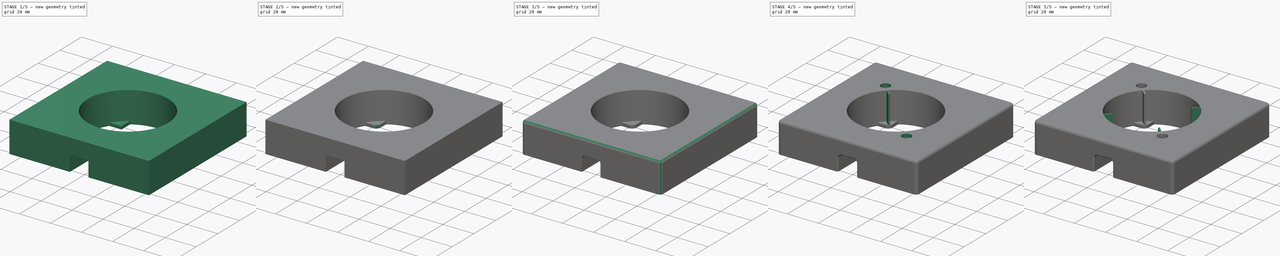
[diagram: build sequence overview — one tinted view per stage of 5, left to right]
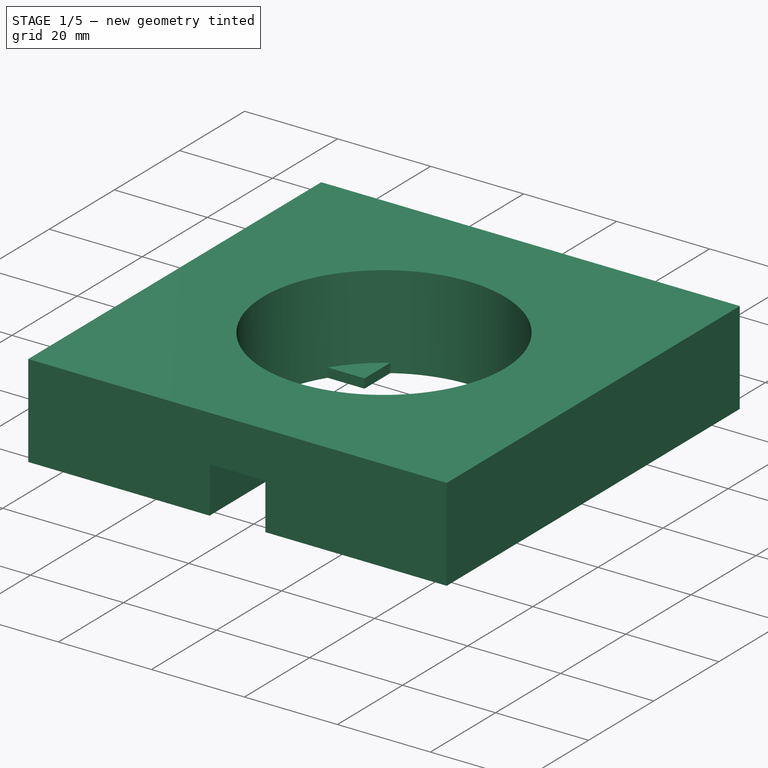
[diagram: stage 1 of 5 — iso view after this stage's code; geometry added in this stage tinted green]
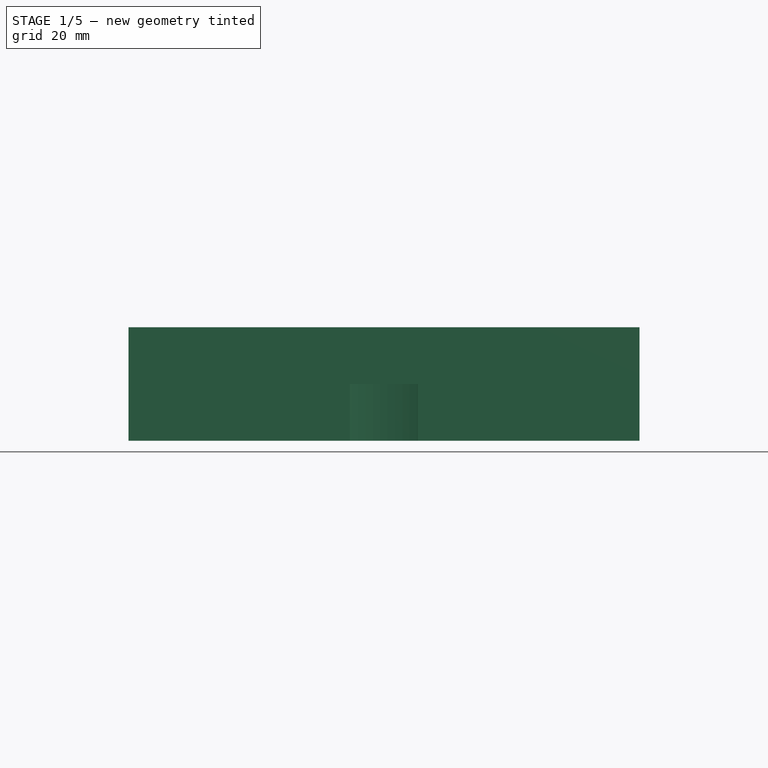
[diagram: stage 1 of 5 — front view after this stage's code; geometry added in this stage tinted green]
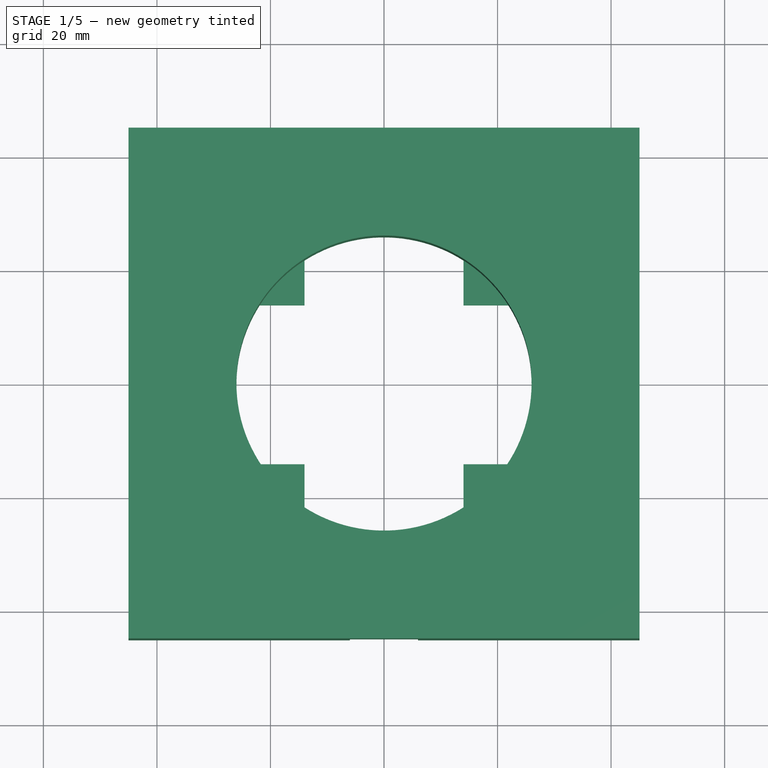
[diagram: stage 1 of 5 — top view after this stage's code; geometry added in this stage tinted green]
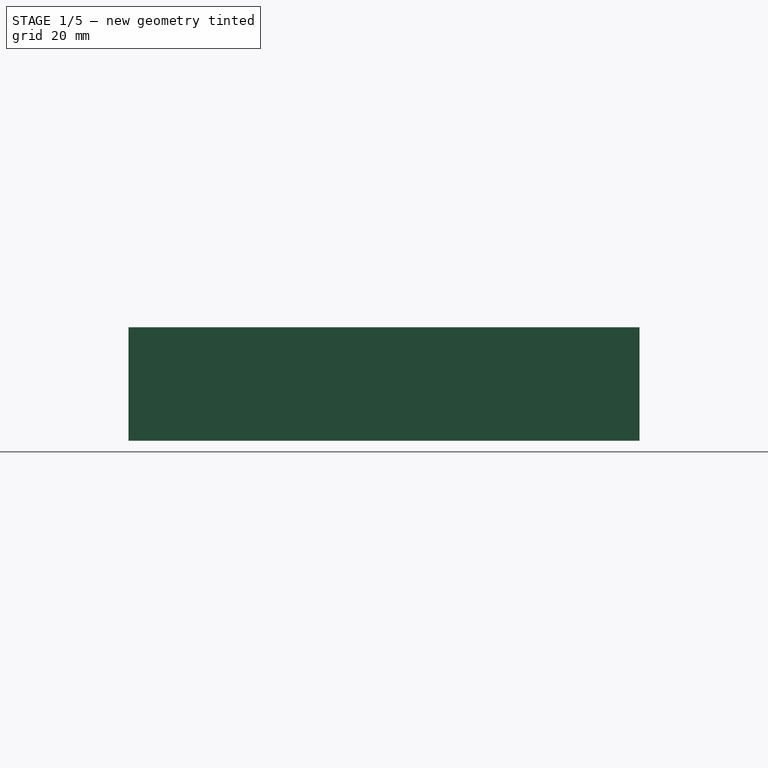
[diagram: stage 1 of 5 — right view after this stage's code; geometry added in this stage tinted green]
FCSTD DOCUMENT  (FreeCAD 0.17R13541 (Git))
Label: circuit-playground-base
License: All rights reserved
LicenseURL: http://en.wikipedia.org/wiki/All_rights_reserved
objects: Sketcher::SketchObject×13, PartDesign::Fillet×12, PartDesign::Pad×5, PartDesign::Pocket×4, PartDesign::PolarPattern×2, PartDesign::Body×2
note: 47 computed .brp shape members not serialized (recipe doc carries the construction recipe); baked Part::Feature solids carry a one-line shape summary decoded from their .brp

FEATURE [Sketcher::SketchObject] Sketch
  MapMode = 5
  Support = -> [XY_Plane]
  sketch-geometry (4):
    g0: LineSegment StartX=-45 StartY=-45 StartZ=0 EndX=45 EndY=-45 EndZ=0
    g1: LineSegment StartX=45 StartY=-45 StartZ=0 EndX=45 EndY=45 EndZ=0
    g2: LineSegment StartX=45 StartY=45 StartZ=0 EndX=-45 EndY=45 EndZ=0
    g3: LineSegment StartX=-45 StartY=45 StartZ=0 EndX=-45 EndY=-45 EndZ=0
  constraints (11):
    c: Coincident(g0,g1)
    c: Coincident(g1,g2)
    c: Coincident(g2,g3)
    c: Coincident(g3,g0)
    c: Horizontal(g0)
    c: Horizontal(g2)
    c: Vertical(g1)
    c: Vertical(g3)
    c: DistanceY(g1,g1) = 90
    c: Equal(g1,g0)
    c: Symmetric(g0,g2,g-1)
FEATURE [PartDesign::Pad] Pad
  Length = 20
  Length2 = 100
  Profile = -> Sketch
  Type = 0
FEATURE [Sketcher::SketchObject] Sketch001
  MapMode = 5
  Placement = pos=(0,0,20) rot=(0,0,1;0rad)
  Support = -> [Pad]
  sketch-geometry (1):
    g0: Circle CenterX=0 CenterY=0 CenterZ=0 NormalX=0 NormalY=0 NormalZ=1 AngleXU=0 Radius=26
  constraints (2):
    c: Coincident(g0,g-1)
    c: Radius(g0) = 26
FEATURE [PartDesign::Pocket] Pocket
  BaseFeature = -> Pad
  Length = 5
  Length2 = 100
  Profile = -> Sketch001
  Type = 1
FEATURE [Sketcher::SketchObject] Sketch002
  MapMode = 5
  Placement = pos=(0,-45,0) rot=(1,0,0;1.5708rad)
  Support = -> [Pocket]
  sketch-geometry (4):
    g0: LineSegment StartX=-1.43886 StartY=0.866006 StartZ=0 EndX=3.56114 EndY=0.866006 EndZ=0
    g1: LineSegment StartX=3.56114 StartY=0.866006 StartZ=0 EndX=3.56114 EndY=5.86601 EndZ=0
    g2: LineSegment StartX=3.56114 StartY=5.86601 StartZ=0 EndX=-1.43886 EndY=5.86601 EndZ=0
    g3: LineSegment StartX=-1.43886 StartY=5.86601 StartZ=0 EndX=-1.43886 EndY=0.866006 EndZ=0
  constraints (10):
    c: Coincident(g0,g1)
    c: Coincident(g1,g2)
    c: Coincident(g2,g3)
    c: Coincident(g3,g0)
    c: Horizontal(g0)
    c: Horizontal(g2)
    c: Vertical(g1)
    c: Vertical(g3)
    c: DistanceX(g0,g0) = 5
    c: Equal(g1,g0)
FEATURE [Sketcher::SketchObject] Sketch003
  MapMode = 5
  Placement = pos=(0,-45,0) rot=(1,0,0;1.5708rad)
  Support = -> [Pocket]
  sketch-geometry (4):
    g0: LineSegment StartX=-6 StartY=10 StartZ=0 EndX=6 EndY=10 EndZ=0
    g1: LineSegment StartX=6 StartY=10 StartZ=0 EndX=6 EndY=0 EndZ=0
    g2: LineSegment StartX=6 StartY=0 StartZ=0 EndX=-6 EndY=0 EndZ=0
    g3: LineSegment StartX=-6 StartY=0 StartZ=0 EndX=-6 EndY=10 EndZ=0
  constraints (12):
    c: Coincident(g0,g1)
    c: Coincident(g1,g2)
    c: Coincident(g2,g3)
    c: Coincident(g3,g0)
    c: Horizontal(g0)
    c: Horizontal(g2)
    c: Vertical(g1)
    c: Vertical(g3)
    c: PointOnObject(g1,g-1)
    c: DistanceY(g1,g1) = 10
    c: DistanceX(g0,g0) = 12
    c: Symmetric(g1,g2,g-1)
FEATURE [PartDesign::Pocket] Pocket001
  BaseFeature = -> Pocket
  Length = 5
  Length2 = 100
  Profile = -> Sketch003
  Type = 2
FEATURE [Sketcher::SketchObject] Sketch004
  MapMode = 5
  Placement = pos=(0,0,0) rot=(1,0,0;3.14159rad)
  Support = -> [Pocket001]
FEATURE [Sketcher::SketchObject] Sketch005
  MapMode = 5
  Placement = pos=(0,0,0) rot=(1,0,0;3.14159rad)
  Support = -> [Pocket001]
  sketch-geometry (4):
    g0: LineSegment StartX=-22 StartY=22 StartZ=0 EndX=-14 EndY=22 EndZ=0
    g1: LineSegment StartX=-14 StartY=22 StartZ=0 EndX=-14 EndY=14 EndZ=0
    g2: LineSegment StartX=-14 StartY=14 StartZ=0 EndX=-22 EndY=14 EndZ=0
    g3: LineSegment StartX=-22 StartY=14 StartZ=0 EndX=-22 EndY=22 EndZ=0
  constraints (12):
    c: Coincident(g0,g1)
    c: Coincident(g1,g2)
    c: Coincident(g2,g3)
    c: Coincident(g3,g0)
    c: Horizontal(g0)
    c: Horizontal(g2)
    c: Vertical(g1)
    c: Vertical(g3)
    c: DistanceY(g1,g1) = 8
    c: Equal(g2,g1)
    c: DistanceX(g0,g-1) = 14
    c: DistanceY(g-1,g1) = 14
FEATURE [PartDesign::Pad] Pad001
  BaseFeature = -> Pocket001
  Length = 2
  Length2 = 100
  Profile = -> Sketch005
  Reversed = true
  Type = 0
FEATURE [PartDesign::PolarPattern] PolarPattern
  Angle = 360
  Axis = -> Sketch005 [N_Axis]
  BaseFeature = -> Pad001
  Occurrences = 4
  Originals = -> [Pad001]
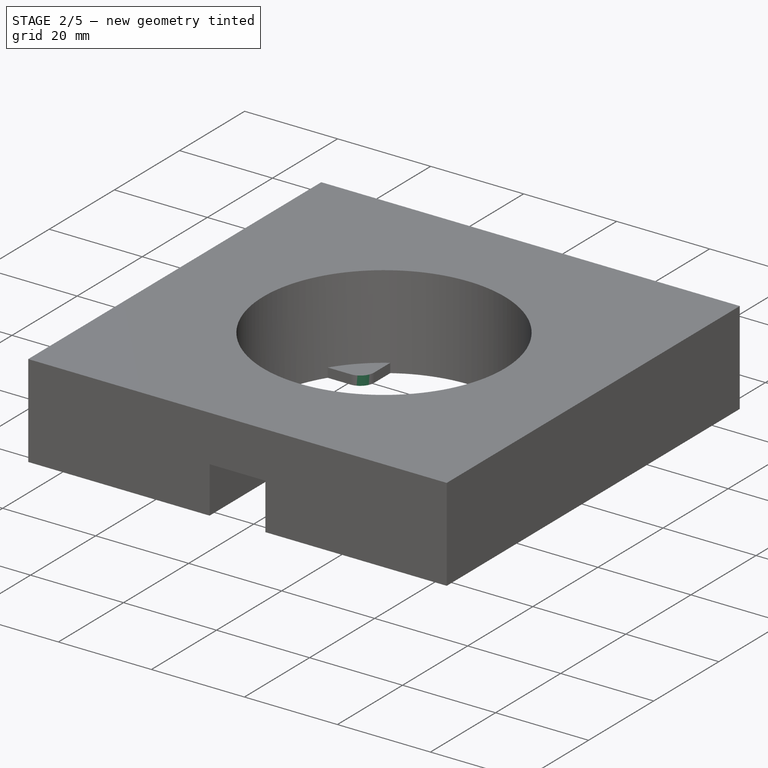
[diagram: stage 2 of 5 — iso view after this stage's code; geometry added in this stage tinted green]
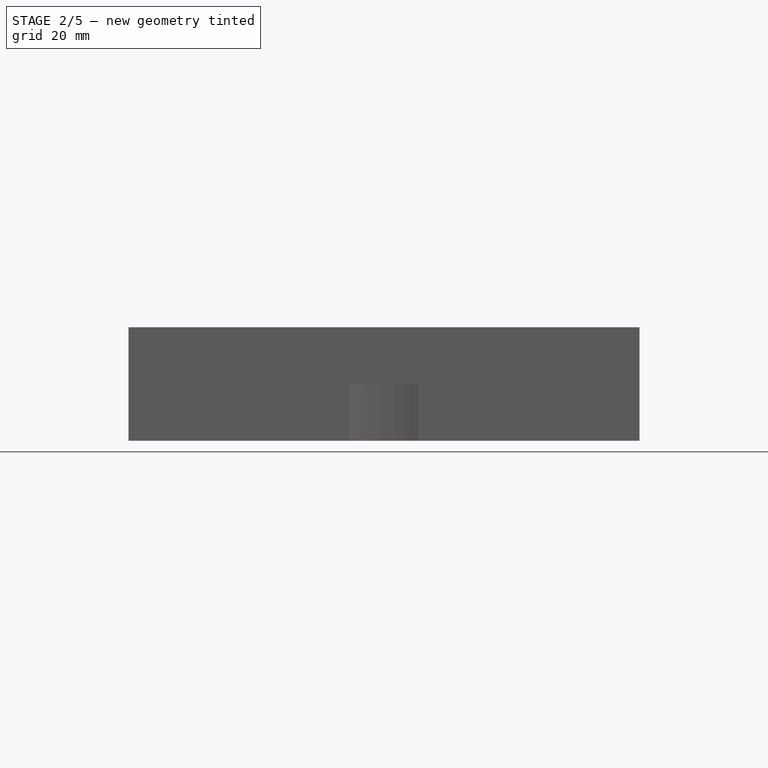
[diagram: stage 2 of 5 — front view after this stage's code; geometry added in this stage tinted green]
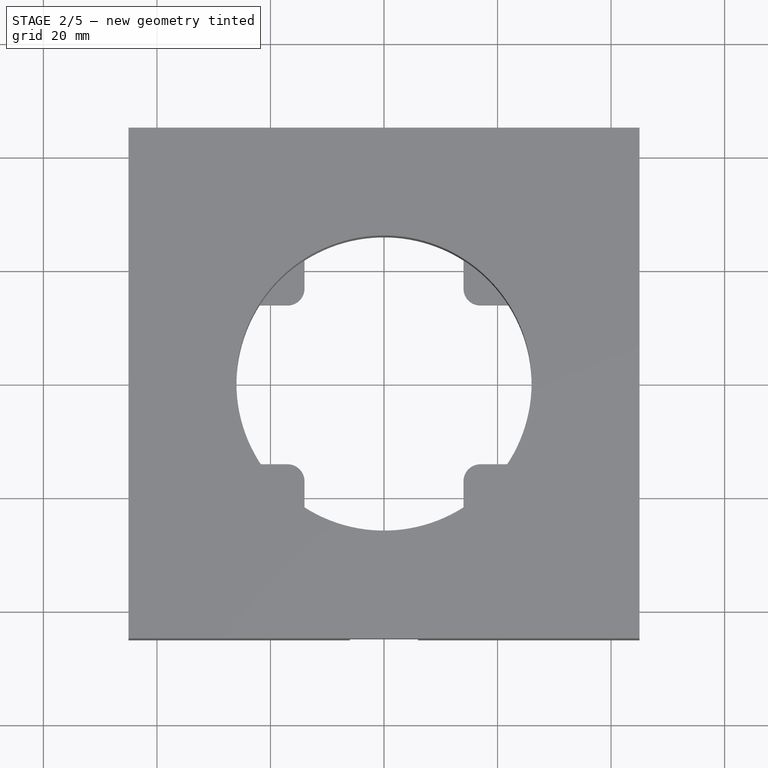
[diagram: stage 2 of 5 — top view after this stage's code; geometry added in this stage tinted green]
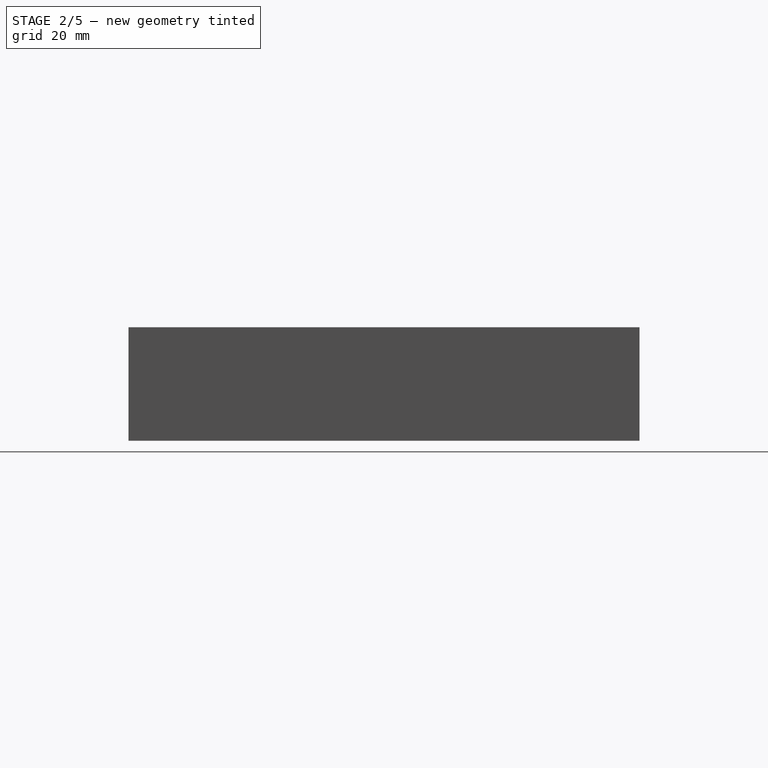
[diagram: stage 2 of 5 — right view after this stage's code; geometry added in this stage tinted green]
FEATURE [PartDesign::Fillet] Fillet
  Base = -> PolarPattern [Edge80]
  BaseFeature = -> PolarPattern
  Radius = 3
FEATURE [PartDesign::Fillet] Fillet001
  Base = -> Fillet [Edge72]
  BaseFeature = -> Fillet
  Radius = 3
FEATURE [PartDesign::Fillet] Fillet002
  Base = -> Fillet001 [Edge67]
  BaseFeature = -> Fillet001
  Radius = 3
FEATURE [PartDesign::Fillet] Fillet003
  Base = -> Fillet002 [Edge57]
  BaseFeature = -> Fillet002
  Radius = 3
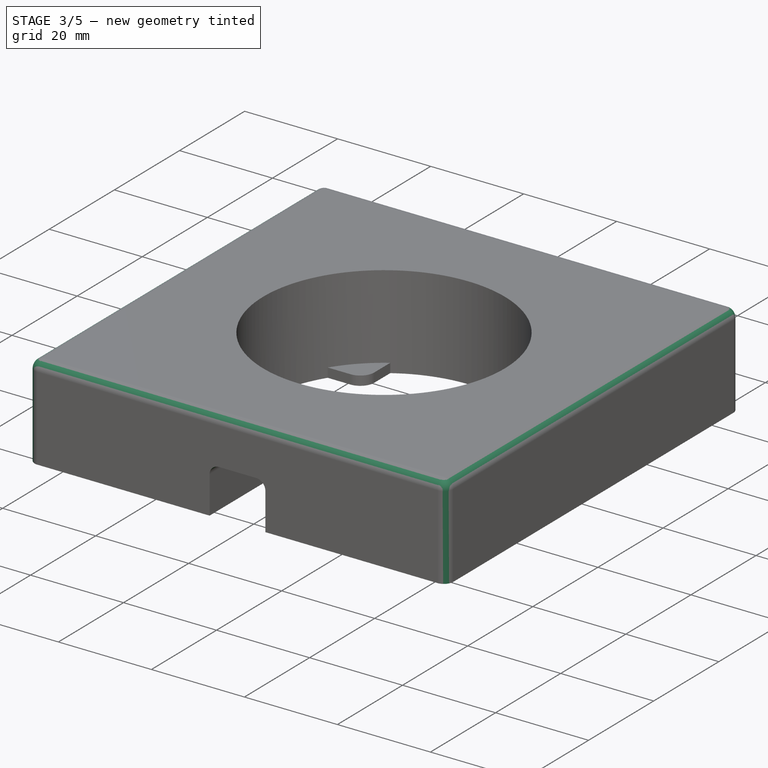
[diagram: stage 3 of 5 — iso view after this stage's code; geometry added in this stage tinted green]
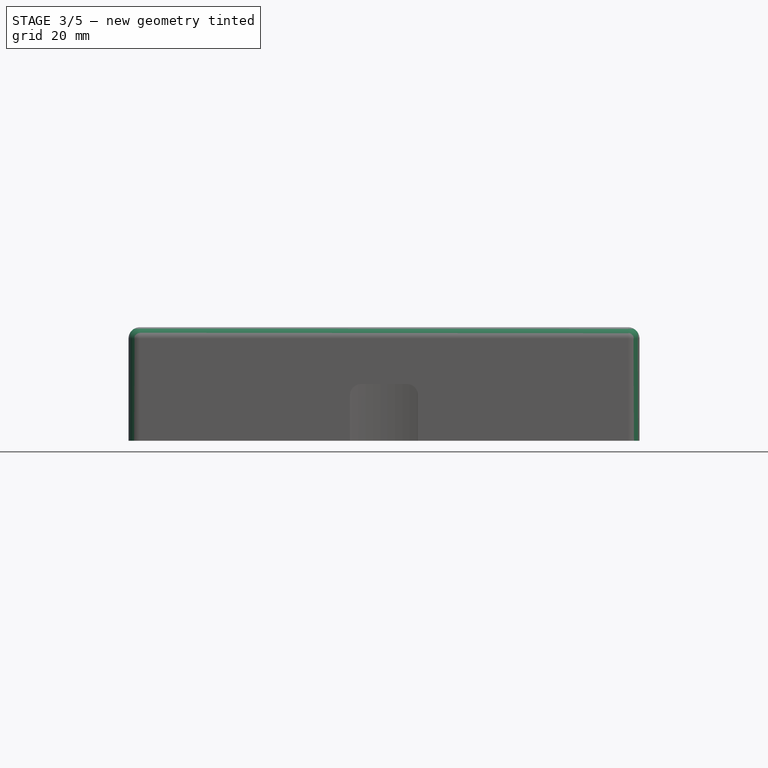
[diagram: stage 3 of 5 — front view after this stage's code; geometry added in this stage tinted green]
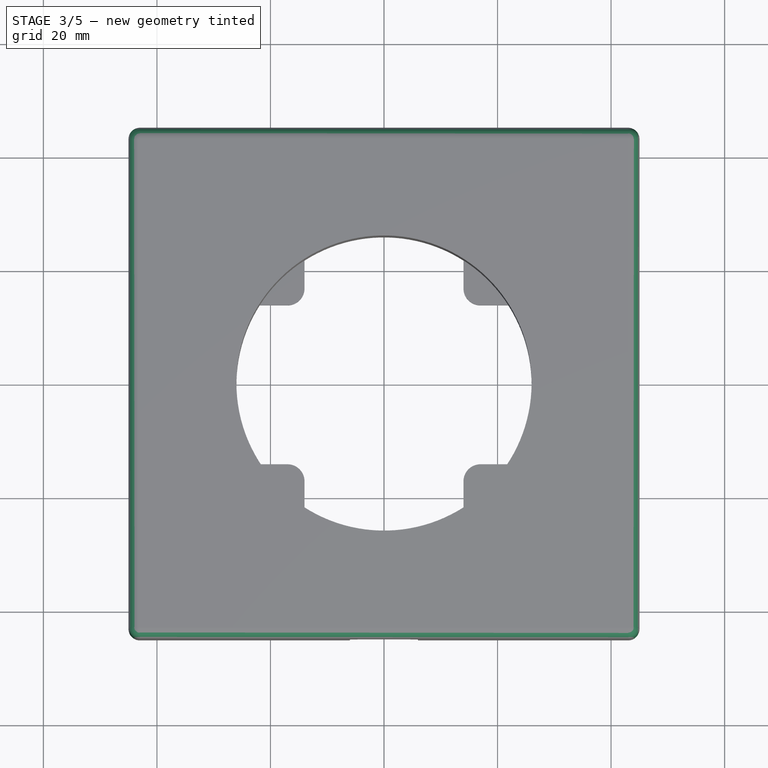
[diagram: stage 3 of 5 — top view after this stage's code; geometry added in this stage tinted green]
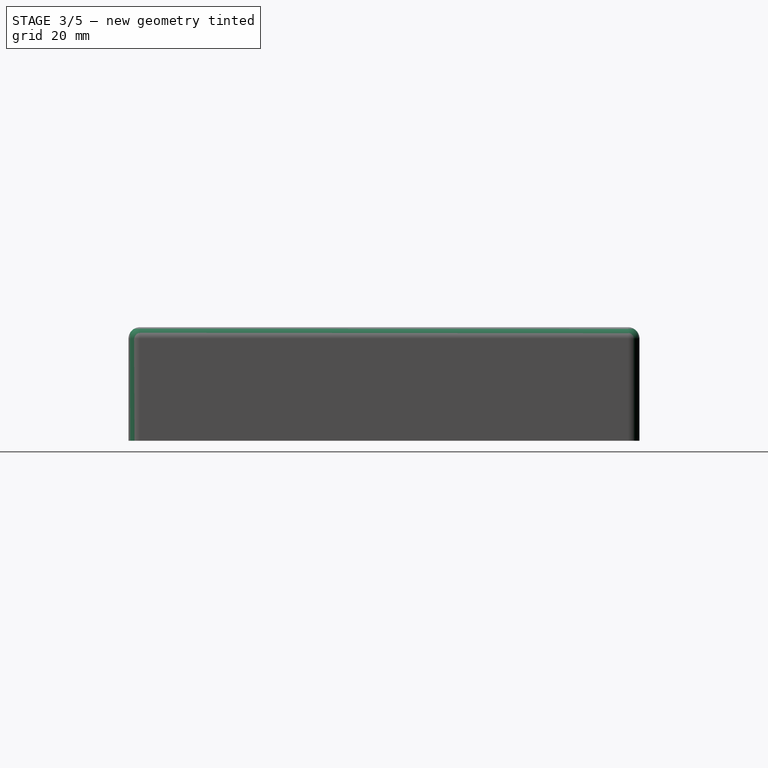
[diagram: stage 3 of 5 — right view after this stage's code; geometry added in this stage tinted green]
FEATURE [PartDesign::Fillet] Fillet004
  Base = -> Fillet003 [Edge57]
  BaseFeature = -> Fillet003
  Radius = 2
FEATURE [PartDesign::Fillet] Fillet005
  Base = -> Fillet004 [Edge53]
  BaseFeature = -> Fillet004
  Radius = 2
FEATURE [Sketcher::SketchObject] Sketch006
  MapMode = 5
  Placement = pos=(0,0,0) rot=(1,0,0;3.14159rad)
  Support = -> [Fillet005]
FEATURE [Sketcher::SketchObject] Sketch007
  MapMode = 5
  Placement = pos=(0,0,0) rot=(1,0,0;3.14159rad)
  Support = -> [Fillet005]
  sketch-geometry (8):
    g0: ArcOfCircle CenterX=0 CenterY=0 CenterZ=0 NormalX=0 NormalY=0 NormalZ=1 AngleXU=0 Radius=28 StartAngle=1.86055 EndAngle=7.56423
    g1: LineSegment StartX=43 StartY=-43 StartZ=0 EndX=-43 EndY=-43 EndZ=0
    g2: LineSegment StartX=-43 StartY=-43 StartZ=0 EndX=-43 EndY=43 EndZ=0
    g3: LineSegment StartX=-43 StartY=43 StartZ=0 EndX=-8 EndY=43 EndZ=0
    g4: LineSegment StartX=43 StartY=43 StartZ=0 EndX=43 EndY=-43 EndZ=0
    g5: LineSegment StartX=-8 StartY=43 StartZ=0 EndX=-8 EndY=26.8328 EndZ=0
    g6: LineSegment StartX=8 StartY=26.8328 StartZ=0 EndX=8 EndY=43 EndZ=0
    g7: LineSegment StartX=8 StartY=43 StartZ=0 EndX=43 EndY=43 EndZ=0
  constraints (23):
    c: Coincident(g0,g-1)
    c: Radius(g0) = 28
    c: Coincident(g1,g2)
    c: Coincident(g2,g3)
    c: Coincident(g7,g4)
    c: Coincident(g4,g1)
    c: Horizontal(g1)
    c: Horizontal(g3)
    c: Vertical(g2)
    c: Vertical(g4)
    c: DistanceX(g1,g1) = 86
    c: Equal(g2,g1)
    c: Symmetric(g1,g7,g-1)
    c: Vertical(g5)
    c: Vertical(g6)
    c: PointOnObject(g6,g3)
    c: PointOnObject(g6,g0)
    c: DistanceX(g5,g6) = 16
    c: Coincident(g0,g5)
    c: PointOnObject(g3,g5)
    c: PointOnObject(g7,g6)
    c: Tangent(g3,g7)
    c: Equal(g3,g7)
FEATURE [PartDesign::Pocket] Pocket002
  BaseFeature = -> Fillet005
  Length = 18
  Length2 = 100
  Profile = -> Sketch007
  Type = 0
FEATURE [PartDesign::Fillet] Fillet006
  Base = -> Pocket002 [Edge84,Edge86,Edge87,Edge85,Edge102,Edge103,Edge127,Edge126]
  BaseFeature = -> Pocket002
  Radius = 2
FEATURE [PartDesign::Fillet] Fillet007
  Base = -> Fillet006 [Edge93,Edge90,Edge95,Edge88,Edge100,Edge81,Edge101,Edge85]
  BaseFeature = -> Fillet006
  Radius = 1
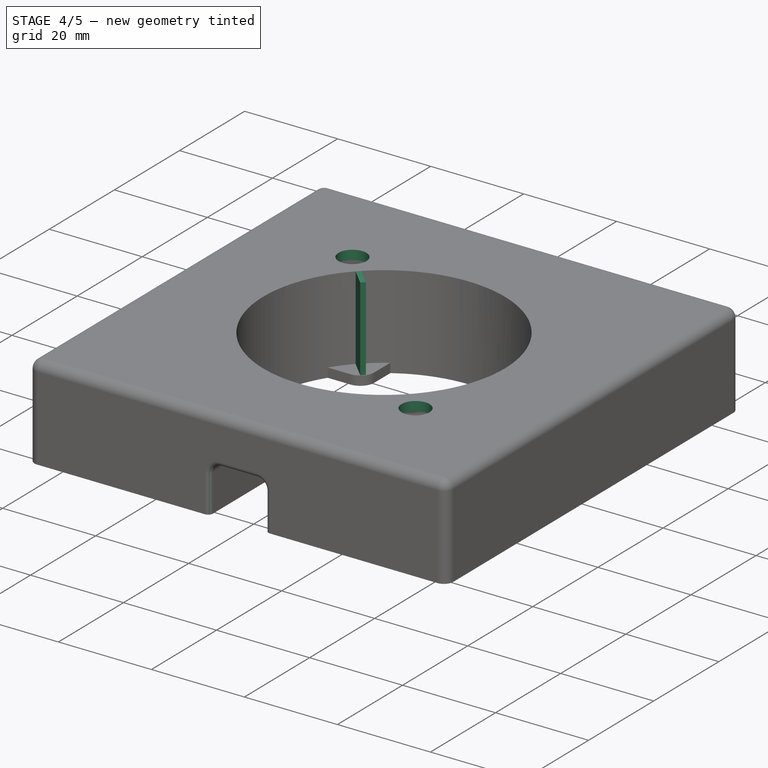
[diagram: stage 4 of 5 — iso view after this stage's code; geometry added in this stage tinted green]
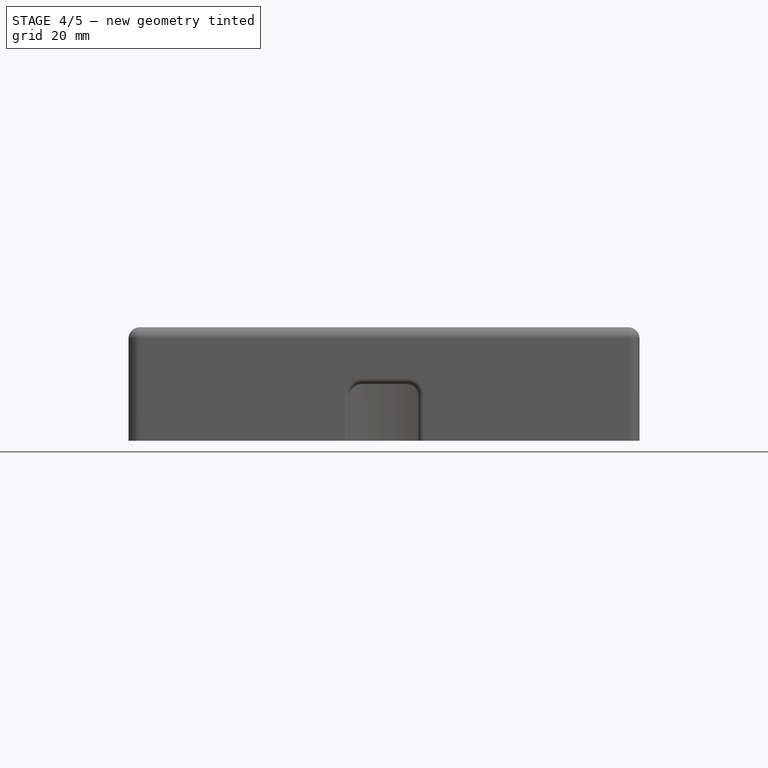
[diagram: stage 4 of 5 — front view after this stage's code; geometry added in this stage tinted green]
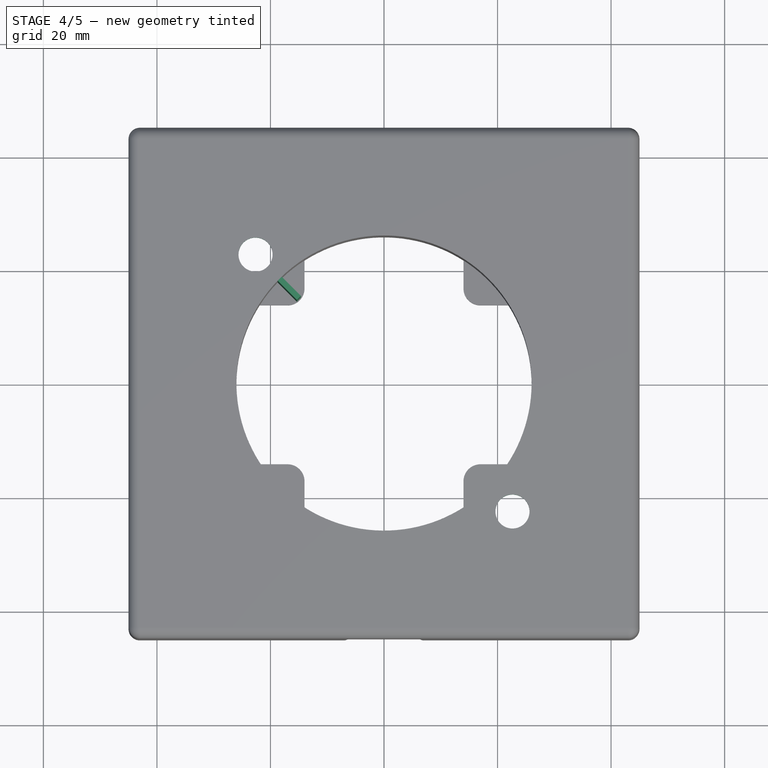
[diagram: stage 4 of 5 — top view after this stage's code; geometry added in this stage tinted green]
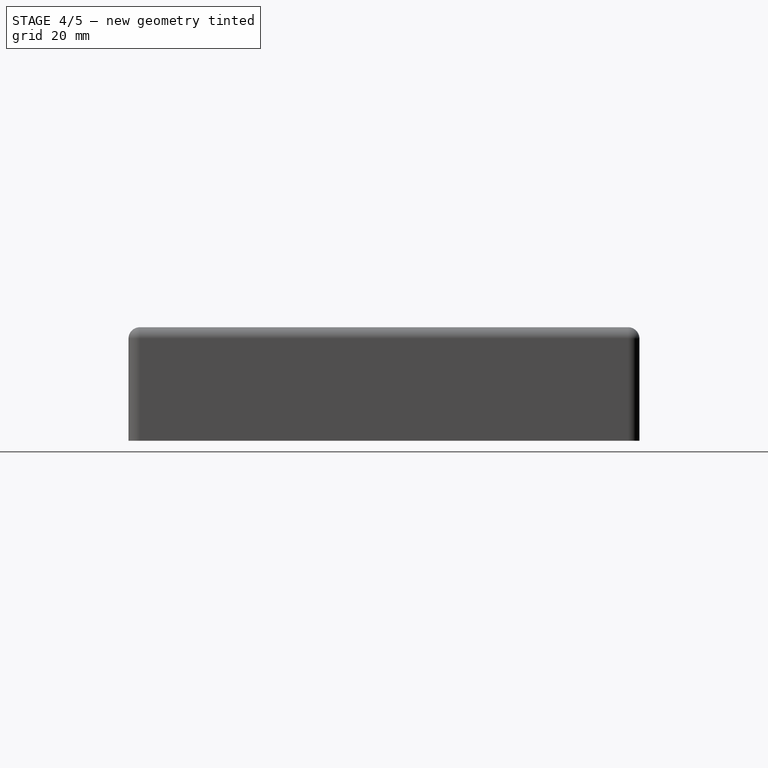
[diagram: stage 4 of 5 — right view after this stage's code; geometry added in this stage tinted green]
FEATURE [Sketcher::SketchObject] Sketch008
  MapMode = 5
  Placement = pos=(0,0,20) rot=(0,0,1;0rad)
  Support = -> [Fillet007]
  sketch-geometry (3):
    g0: GeomPoint X=22.63 Y=-22.63 Z=0
    g1: Circle CenterX=22.63 CenterY=-22.63 CenterZ=0 NormalX=0 NormalY=0 NormalZ=1 AngleXU=0 Radius=3
    g2: Circle CenterX=-22.63 CenterY=22.63 CenterZ=0 NormalX=0 NormalY=0 NormalZ=1 AngleXU=0 Radius=3
  constraints (6):
    c: DistanceX(g0) = 22.63
    c: DistanceY(g0,g-1) = 22.63
    c: Coincident(g1,g0)
    c: Radius(g1) = 3
    c: Symmetric(g2,g0,g-1)
    c: Radius(g2) = 3
FEATURE [PartDesign::Pocket] Pocket003
  BaseFeature = -> Fillet007
  Length = 5
  Length2 = 100
  Profile = -> Sketch008
  Type = 1
FEATURE [PartDesign::Body] Body001
  Group = -> [Sketch010,Pad002,Fillet008,Sketch011,Pad003,Fillet009]
  Origin = -> Origin001
  Tip = -> Fillet009
FEATURE [PartDesign::Fillet] Fillet010
  Base = -> Pocket003 [Edge88,Edge92,Edge91,Edge93,Edge94]
  BaseFeature = -> Pocket003
  Radius = 1
FEATURE [PartDesign::Fillet] Fillet011
  Base = -> Fillet010 [Edge31,Edge36,Edge38,Edge39,Edge40]
  BaseFeature = -> Fillet010
  Radius = 1
FEATURE [Sketcher::SketchObject] Sketch012
  MapMode = 5
  Placement = pos=(0,0,2) rot=(0,0,1;0rad)
  Support = -> [Fillet011]
  sketch-geometry (10):
    g0: GeomPoint X=-15 Y=15 Z=0
    g1: GeomPoint X=15 Y=-15 Z=0
    g2: GeomPoint X=-15 Y=15 Z=0
    g3: GeomPoint X=0 Y=0 Z=0
    g4: GeomPoint X=15 Y=-15 Z=0
    g5: LineSegment StartX=-15 StartY=15 StartZ=0 EndX=-14.6464 EndY=15.3536 EndZ=0
    g6: LineSegment StartX=-15 StartY=15 StartZ=0 EndX=-15.3536 EndY=14.6464 EndZ=0
    g7: LineSegment StartX=-15.3536 StartY=14.6464 StartZ=0 EndX=-18.8891 EndY=18.182 EndZ=0
    g8: LineSegment StartX=-14.6464 StartY=15.3536 StartZ=0 EndX=-18.182 EndY=18.8891 EndZ=0
    g9: LineSegment StartX=-18.182 StartY=18.8891 StartZ=0 EndX=-18.8891 EndY=18.182 EndZ=0
  constraints (20):
    c: Coincident(g2,g0)
    c: Coincident(g3,g-1)
    c: Coincident(g4,g1)
    c: Symmetric(g0,g1,g-1)
    c: DistanceY(g-1,g0) = 15
    c: DistanceX(g0,g-1) = 15
    c: Angle(g-1,g5) = 0.785398
    c: Distance(g5,g5) = 0.5
    c: Coincident(g5,g0)
    c: Equal(g5,g6)
    c: Parallel(g5,g6)
    c: Coincident(g6,g0)
    c: Coincident(g7,g6)
    c: Perpendicular(g7,g6)
    c: Coincident(g8,g5)
    c: Parallel(g8,g7)
    c: Equal(g8,g7)
    c: Distance(g7) = 5
    c: Coincident(g9,g7)
    c: Coincident(g9,g8)
FEATURE [PartDesign::Pad] Pad004
  BaseFeature = -> Fillet011
  Length = 18
  Length2 = 100
  Profile = -> Sketch012
  Type = 0
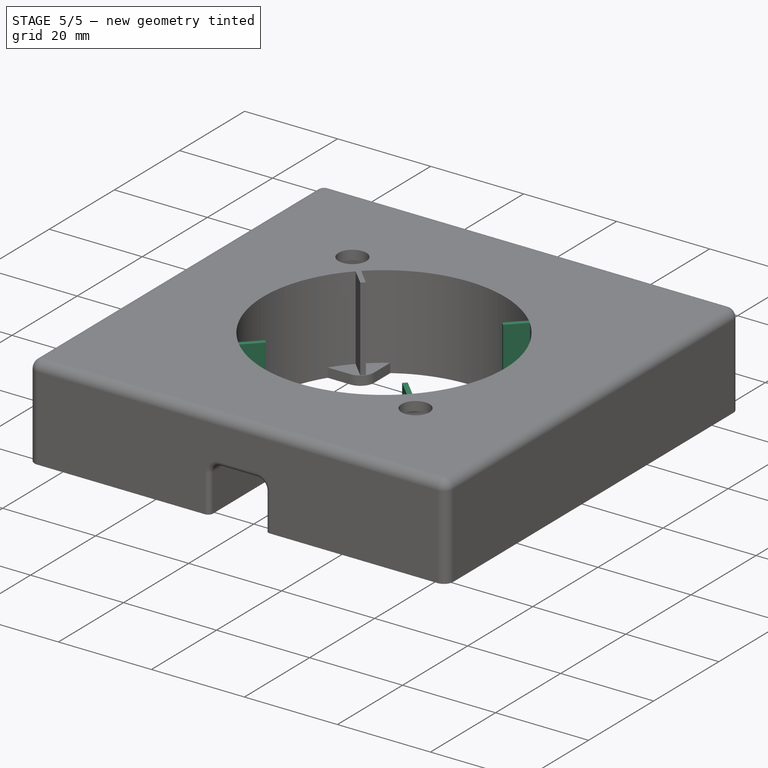
[diagram: stage 5 of 5 — iso view after this stage's code; geometry added in this stage tinted green]
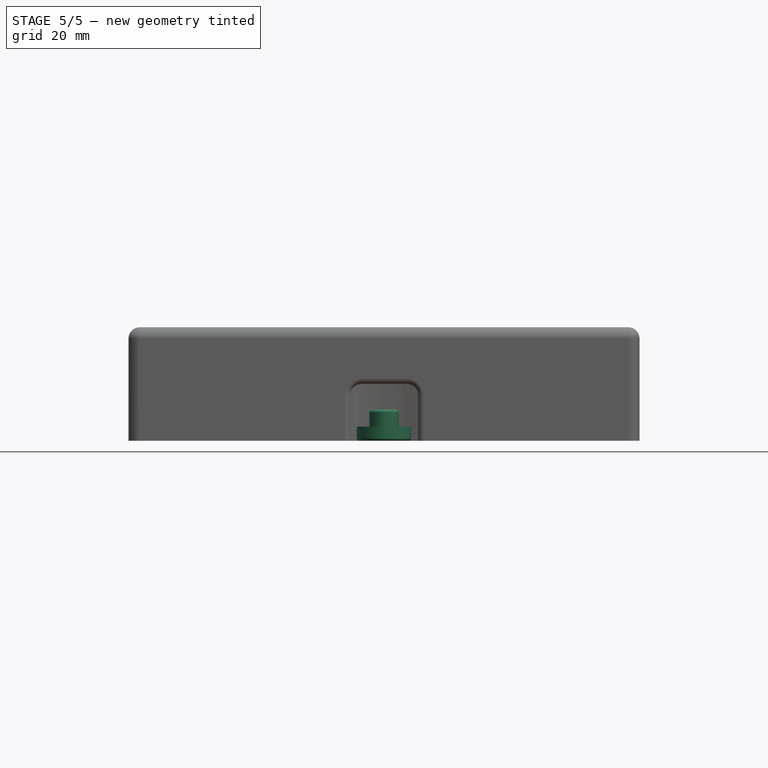
[diagram: stage 5 of 5 — front view after this stage's code; geometry added in this stage tinted green]
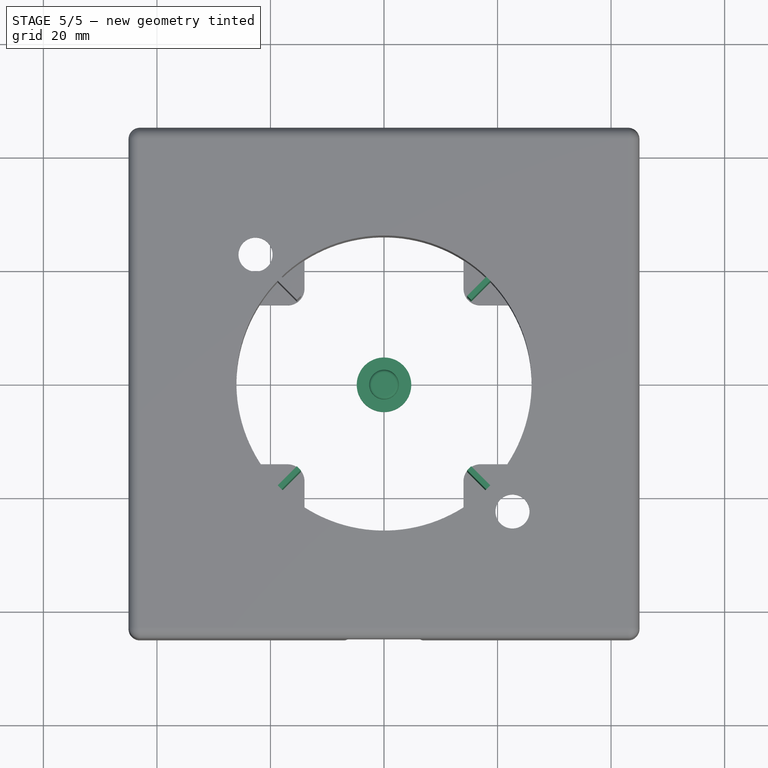
[diagram: stage 5 of 5 — top view after this stage's code; geometry added in this stage tinted green]
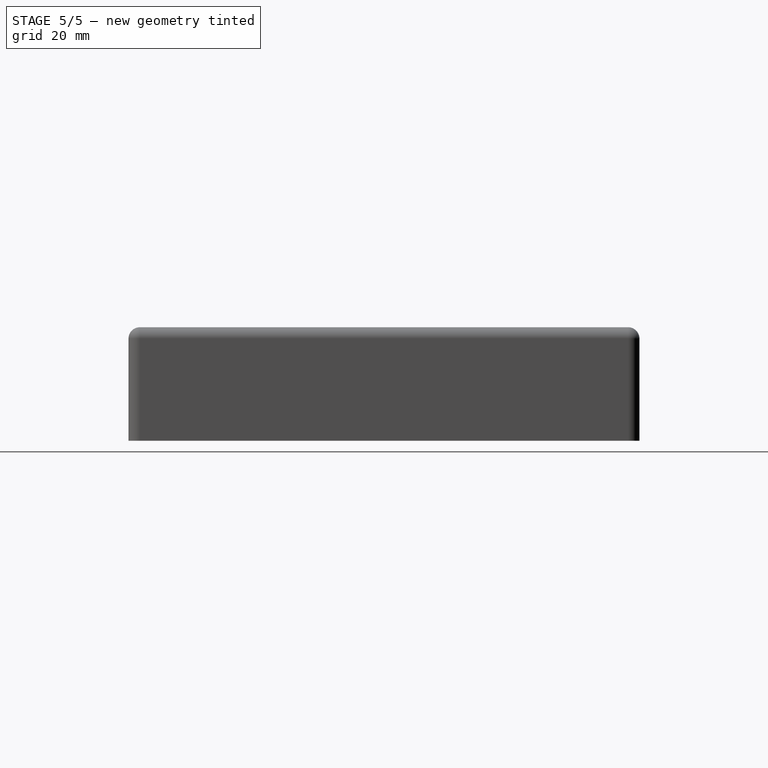
[diagram: stage 5 of 5 — right view after this stage's code; geometry added in this stage tinted green]
FEATURE [Sketcher::SketchObject] Sketch009
  MapMode = 5
  Support = -> [XY_Plane]
FEATURE [Sketcher::SketchObject] Sketch010
  MapMode = 5
  Support = -> [XY_Plane001]
  sketch-geometry (1):
    g0: Circle CenterX=0 CenterY=0 CenterZ=0 NormalX=0 NormalY=0 NormalZ=1 AngleXU=0 Radius=4.8
  constraints (2):
    c: Radius(g0) = 4.8
    c: Coincident(g0,g-1)
FEATURE [PartDesign::Pad] Pad002
  Length = 2.5
  Length2 = 100
  Profile = -> Sketch010
  Type = 0
FEATURE [PartDesign::Fillet] Fillet008
  Base = -> Pad002 [Edge2]
  BaseFeature = -> Pad002
  Radius = 0.5
FEATURE [Sketcher::SketchObject] Sketch011
  MapMode = 5
  Placement = pos=(0,0,2.5) rot=(0,0,1;0rad)
  Support = -> [Fillet008]
  sketch-geometry (1):
    g0: Circle CenterX=0 CenterY=0 CenterZ=0 NormalX=0 NormalY=0 NormalZ=1 AngleXU=0 Radius=2.6
  constraints (2):
    c: Coincident(g0,g-1)
    c: Radius(g0) = 2.6
FEATURE [PartDesign::Pad] Pad003
  BaseFeature = -> Fillet008
  Length = 3
  Length2 = 100
  Profile = -> Sketch011
  Type = 0
FEATURE [PartDesign::Fillet] Fillet009
  Base = -> Pad003 [Edge8]
  BaseFeature = -> Pad003
  Radius = 0.5
FEATURE [PartDesign::PolarPattern] PolarPattern001
  Angle = 360
  Axis = -> Z_Axis
  BaseFeature = -> Pad004
  Occurrences = 4
  Originals = -> [Pad004]
FEATURE [PartDesign::Body] Body
  Group = -> [Sketch,Pad,Sketch001,Pocket,Sketch002,Sketch003,Pocket001,Sketch004,Sketch005,Pad001,PolarPattern,Fillet,Fillet001,Fillet002,Fillet003,Fillet004,Fillet005,Sketch006,Sketch007,Pocket002,Fillet006,Fillet007,Sketch008,Pocket003,Sketch009,Fillet010,Fillet011,Sketch012,Pad004,PolarPattern001]
  Origin = -> Origin
  Tip = -> PolarPattern001
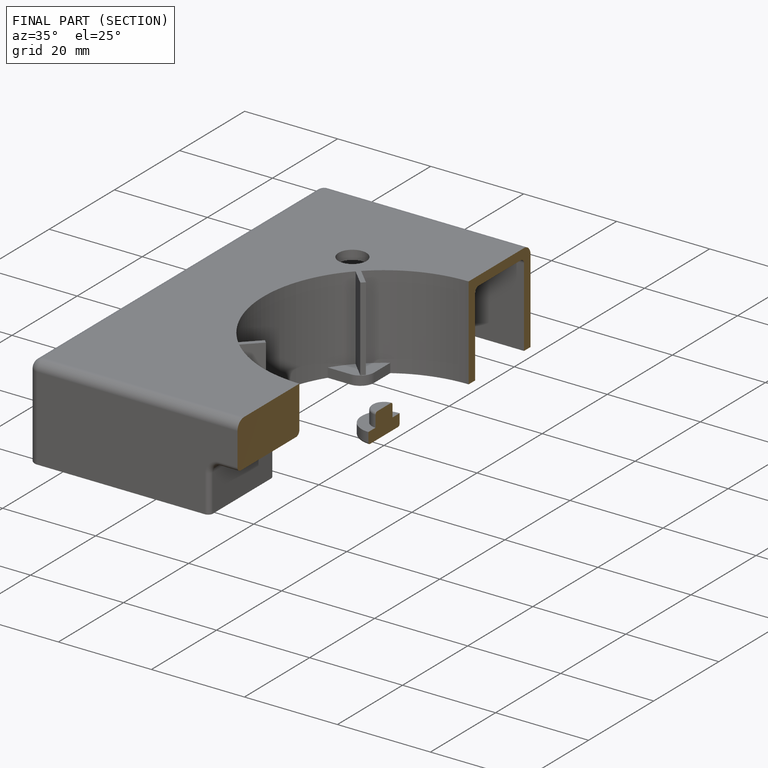
[diagram: finished part — half-section view (interior)]
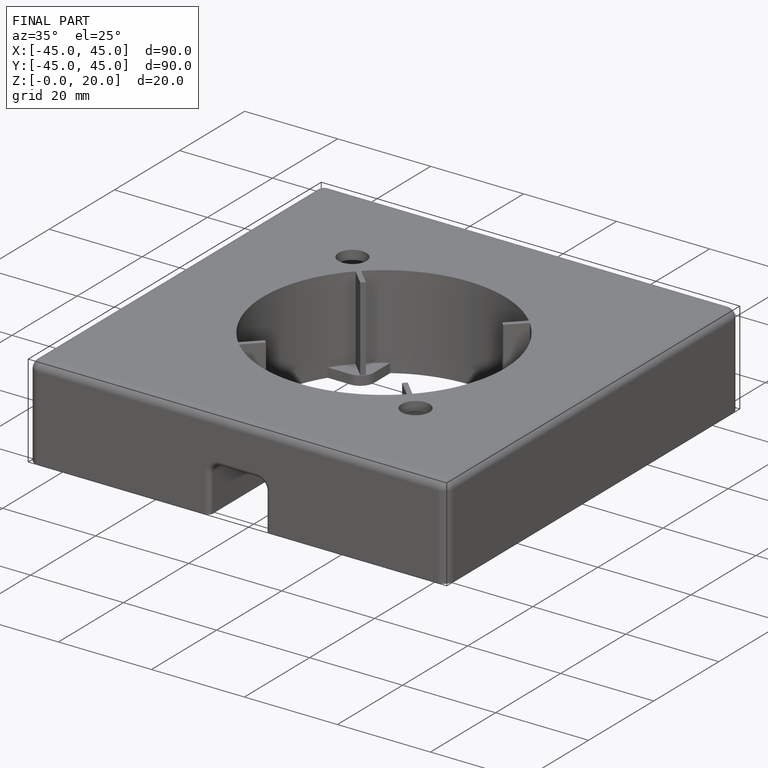
[diagram: finished part — iso view with bounding-box wireframe]
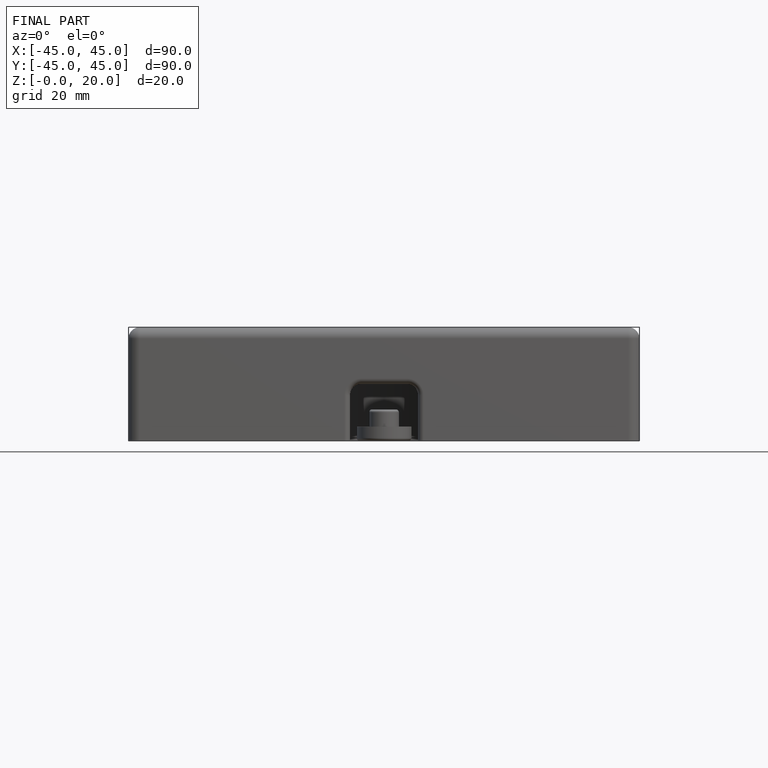
[diagram: finished part — front view with bounding-box wireframe]
